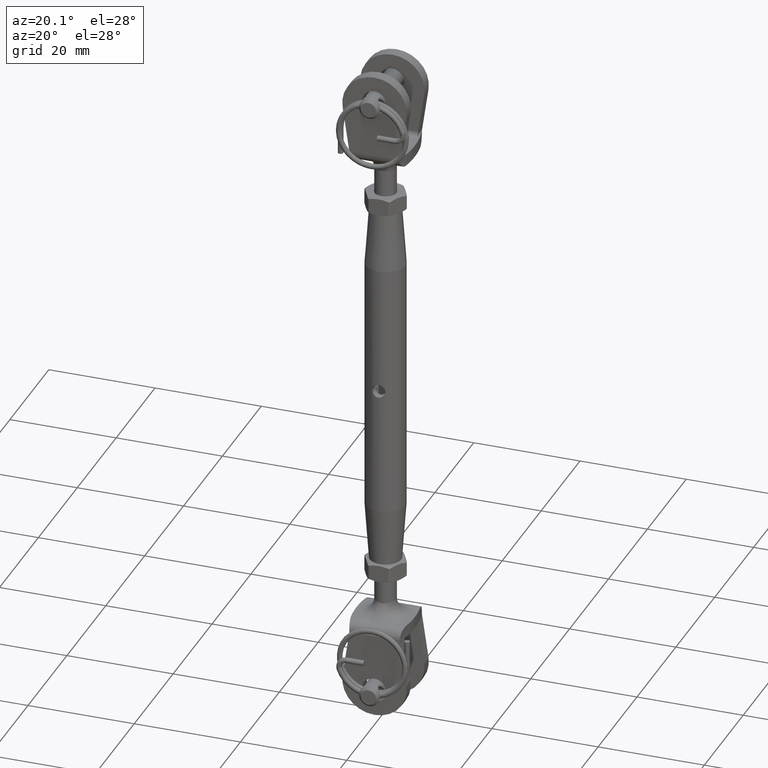
[diagram: clean part render]
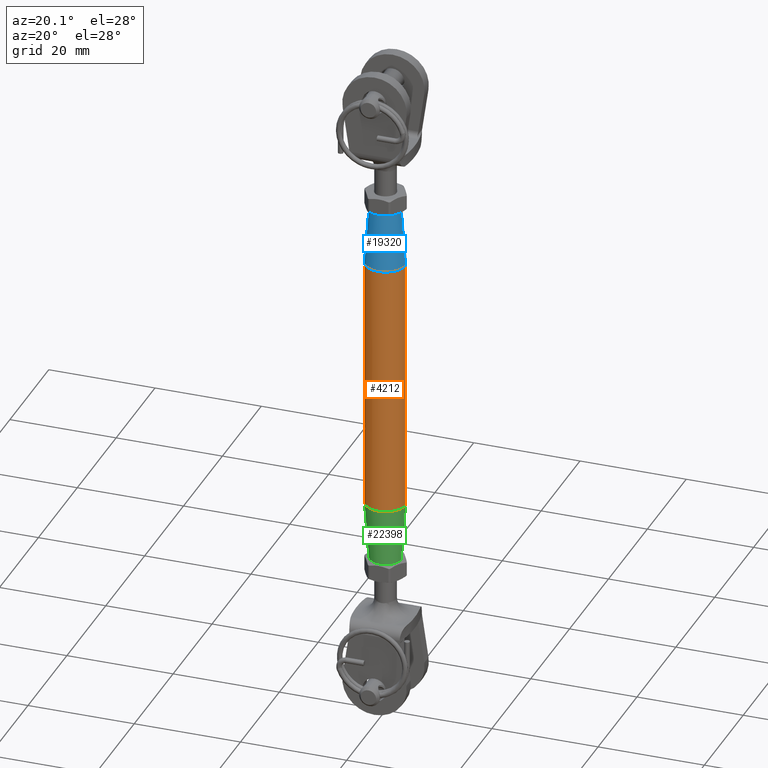
[diagram: same view with three faces highlighted in distinct colors, each labeled with its STEP entity id]
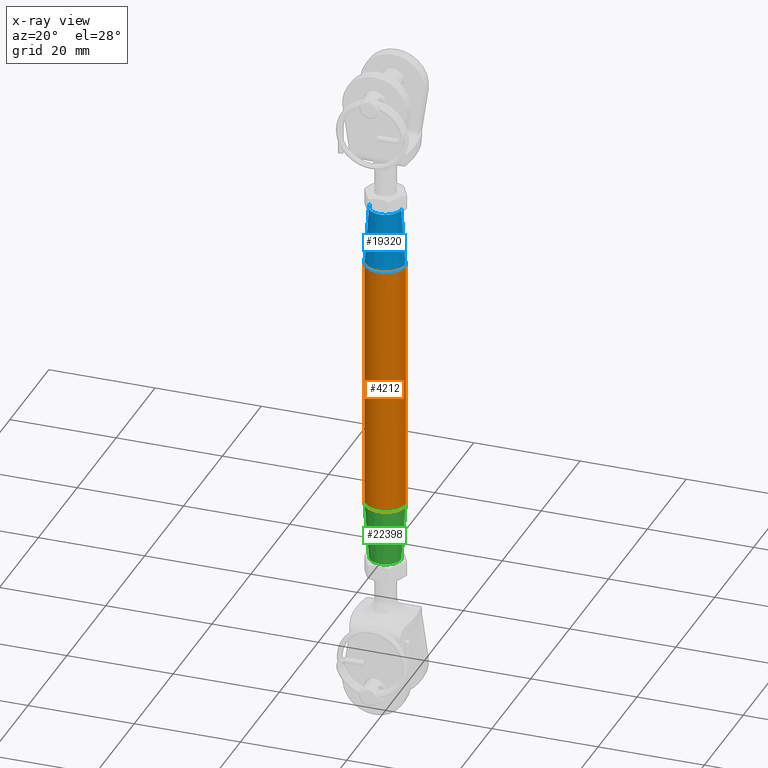
[diagram: x-ray of the same camera — body ghosted, the three highlighted faces saturated]
A machine part, auxiliary view with three faces highlighted in distinct colors.
The next image is the same camera in x-ray (body ghosted, the three faces saturated) — at least one of them is partly hidden behind the body in this view.
Their STEP definitions:

[orange] entity #4212 — the highlighted cylindrical surface (edge-blend (fillet) strip) has radius 3.75 mm, axis along (0, 0, 1).
#26 = CARTESIAN_POINT ( 'NONE',  ( 0.0000000000000000000, -3.749999999999993800, 1.250000000000000000 ) ) ;
#39 = CARTESIAN_POINT ( 'NONE',  ( 0.6320108780505503400, -3.699498500918843900, 1.090814025960213300 ) ) ;
#272 = CARTESIAN_POINT ( 'NONE',  ( -3.749999999999993800, 4.592425496802567100E-016, 24.00000000000000700 ) ) ;
#385 = EDGE_CURVE ( 'NONE', #8331, #26174, #14412, .T. ) ;
#594 = FACE_OUTER_BOUND ( 'NONE', #23929, .T. ) ;
#1698 = CARTESIAN_POINT ( 'NONE',  ( -0.7694914848820424400, -3.672094268853623300, 0.9983159871190907500 ) ) ;
#1845 = VERTEX_POINT ( 'NONE', #26148 ) ;
#2108 = CARTESIAN_POINT ( 'NONE',  ( 1.185723957054449300, -3.557761199879605000, -0.4041576032034501200 ) ) ;
#2141 = CARTESIAN_POINT ( 'NONE',  ( 1.209544131638288000, -3.549618786202352700, -0.3259293725565076100 ) ) ;
#2430 = CARTESIAN_POINT ( 'NONE',  ( -3.749999999999993800, 4.592425496802567100E-016, 35.00000000000000000 ) ) ;
#2431 = CARTESIAN_POINT ( 'NONE',  ( 0.3297197248178919700, -3.738584198776457900, 1.216798213456845100 ) ) ;
#3156 = AXIS2_PLACEMENT_3D ( 'NONE', #21118, #25583, #21026 ) ;
#3355 = VECTOR ( 'NONE', #24515, 1000.000000000000000 ) ;
#3857 = CARTESIAN_POINT ( 'NONE',  ( -1.090963977429626000, -3.588412831428236900, -0.6319488626941608400 ) ) ;
#3982 = CIRCLE ( 'NONE', #3156, 3.749999999999993800 ) ;
#4171 = EDGE_CURVE ( 'NONE', #26174, #1845, #10773, .T. ) ;
#4212 = ADVANCED_FACE ( 'NONE', ( #594, #9795 ), #20923, .T. ) ;
#4526 = CARTESIAN_POINT ( 'NONE',  ( 3.749999999999993800, 0.0000000000000000000, -24.00000000000000700 ) ) ;
#5016 = LINE ( 'NONE', #7583, #3355 ) ;
#5289 = VECTOR ( 'NONE', #17569, 1000.000000000000000 ) ;
#5290 = CARTESIAN_POINT ( 'NONE',  ( 1.530268035033271700E-016, -3.749999999999993800, -1.250000000000000000 ) ) ;
#5600 = VERTEX_POINT ( 'NONE', #21301 ) ;
#5668 = CARTESIAN_POINT ( 'NONE',  ( -0.6311023444221300900, -3.699640464665185900, -1.091283776973281700 ) ) ;
#5940 = CARTESIAN_POINT ( 'NONE',  ( -1.209500571403290500, -3.549633526929109300, -0.3260387892030225400 ) ) ;
#6037 = CARTESIAN_POINT ( 'NONE',  ( -0.1664231518548636700, -3.749999999999992500, 1.249999999999999600 ) ) ;
#6140 = AXIS2_PLACEMENT_3D ( 'NONE', #23120, #16745, #14568 ) ;
#6174 = EDGE_CURVE ( 'NONE', #15053, #1845, #5016, .T. ) ;
#6496 = CARTESIAN_POINT ( 'NONE',  ( 0.7698997003452272600, -3.672003145877369900, 0.9979692256851021600 ) ) ;
#6705 = EDGE_CURVE ( 'NONE', #21989, #5600, #11899, .T. ) ;
#7583 = CARTESIAN_POINT ( 'NONE',  ( 3.749999999999993800, 0.0000000000000000000, 35.00000000000000000 ) ) ;
#7619 = AXIS2_PLACEMENT_3D ( 'NONE', #25284, #20929, #27660 ) ;
#8143 = CARTESIAN_POINT ( 'NONE',  ( -1.250009802955045900, -3.535530440064764700, -0.08221989510962238200 ) ) ;
#8331 = VERTEX_POINT ( 'NONE', #18835 ) ;
#8880 = CARTESIAN_POINT ( 'NONE',  ( 0.0000000000000000000, -3.749999999999993800, 1.250000000000000000 ) ) ;
#8970 = CARTESIAN_POINT ( 'NONE',  ( 1.091466335872163200, -3.588247214533702800, 0.6305990485126679000 ) ) ;
#9323 = EDGE_LOOP ( 'NONE', ( #21456, #17398 ) ) ;
#9795 = FACE_BOUND ( 'NONE', #9323, .T. ) ;
#10773 = CIRCLE ( 'NONE', #7619, 3.749999999999993800 ) ;
#10862 = CARTESIAN_POINT ( 'NONE',  ( 1.250040618164601500, -3.535519545244908200, -0.08158253637666958200 ) ) ;
#11108 = CARTESIAN_POINT ( 'NONE',  ( 1.090794001129100200, -3.588466619310704900, -0.6323030360047410300 ) ) ;
#11269 = ORIENTED_EDGE ( 'NONE', *, *, #25728, .T. ) ;
#11899 = B_SPLINE_CURVE_WITH_KNOTS ( 'NONE', 3,
 ( #8880, #19470, #2431, #39, #6496, #21929, #8970, #21648, #12919, #10862, #15094, #2141, #2108, #11108, #21995, #12499, #27654, #27791, #26320, #23273, #18032, #5290 ),
 .UNSPECIFIED., .F., .F.,
 ( 4, 2, 2, 2, 2, 2, 2, 2, 2, 2, 4 ),
 ( 0.0000000000000000000, 0.0004920558132677722800, 0.0009841116265355443400, 0.001476167439803316400, 0.001968223253071088200, 0.002214251159704974100, 0.002460279066338860700, 0.002952334879606632800, 0.003198362786240518200, 0.003444390692874404400, 0.003936446506142174700 ),
 .UNSPECIFIED. ) ;
#12205 = CARTESIAN_POINT ( 'NONE',  ( -1.241678343262103000, -3.538505998242472000, -0.1656134540541264700 ) ) ;
#12481 = CARTESIAN_POINT ( 'NONE',  ( -1.185730390998942700, -3.557758522168660100, -0.4041149355553636500 ) ) ;
#12499 = CARTESIAN_POINT ( 'NONE',  ( 0.8260014785984332000, -3.658377809847904500, -0.9417221101786827900 ) ) ;
#12919 = CARTESIAN_POINT ( 'NONE',  ( 1.249918302402952100, -3.535562790391178400, 0.1650250481899059900 ) ) ;
#13023 = B_SPLINE_CURVE_WITH_KNOTS ( 'NONE', 3,
 ( #23017, #14547, #18651, #5668, #18918, #25167, #3857, #12481, #5940, #12205, #8143, #23282, #25453, #27640, #14641, #1698, #25544, #17291, #6037, #21379 ),
 .UNSPECIFIED., .F., .F.,
 ( 4, 2, 2, 2, 2, 2, 2, 2, 2, 4 ),
 ( 0.003936446506142174700, 0.004428377038671974300, 0.004920307571201773900, 0.005412238103731573400, 0.005658203369996473200, 0.005904168636261373000, 0.006396099168791172600, 0.006888029701320972200, 0.007379960233850772600, 0.007871890766380573000 ),
 .UNSPECIFIED. ) ;
#14412 = LINE ( 'NONE', #2430, #5289 ) ;
#14547 = CARTESIAN_POINT ( 'NONE',  ( -0.1639419682043154200, -3.749999999999994700, -1.249999999999999800 ) ) ;
#14568 = DIRECTION ( 'NONE',  ( 1.000000000000000000, 0.0000000000000000000, 0.0000000000000000000 ) ) ;
#14641 = CARTESIAN_POINT ( 'NONE',  ( -0.9985882534272267900, -3.616519731008081400, 0.7691381251509360500 ) ) ;
#15053 = VERTEX_POINT ( 'NONE', #4526 ) ;
#15094 = CARTESIAN_POINT ( 'NONE',  ( 1.241761983712016800, -3.538476749895198100, -0.1650882736092887900 ) ) ;
#16745 = DIRECTION ( 'NONE',  ( -0.0000000000000000000, -0.0000000000000000000, 1.000000000000000000 ) ) ;
#17291 = CARTESIAN_POINT ( 'NONE',  ( -0.3296877630051796600, -3.738586061306944600, 1.216803087433497000 ) ) ;
#17398 = ORIENTED_EDGE ( 'NONE', *, *, #20939, .T. ) ;
#17569 = DIRECTION ( 'NONE',  ( -0.0000000000000000000, -0.0000000000000000000, 1.000000000000000000 ) ) ;
#18032 = CARTESIAN_POINT ( 'NONE',  ( 0.1639837195683863100, -3.749999999999994700, -1.250000000000000000 ) ) ;
#18589 = ORIENTED_EDGE ( 'NONE', *, *, #6174, .T. ) ;
#18651 = CARTESIAN_POINT ( 'NONE',  ( -0.3294379438808623900, -3.738596043711421800, -1.216824182925261100 ) ) ;
#18835 = CARTESIAN_POINT ( 'NONE',  ( -3.749999999999993800, 4.592425496802567100E-016, -24.00000000000000700 ) ) ;
#18918 = CARTESIAN_POINT ( 'NONE',  ( -0.7686322532443392600, -3.672302808577158700, -0.9991763519603743500 ) ) ;
#19470 = CARTESIAN_POINT ( 'NONE',  ( 0.1664655351059555200, -3.749999999999995100, 1.250000000000000400 ) ) ;
#20923 = CYLINDRICAL_SURFACE ( 'NONE', #6140, 3.749999999999993800 ) ;
#20929 = DIRECTION ( 'NONE',  ( -0.0000000000000000000, -0.0000000000000000000, 1.000000000000000000 ) ) ;
#20939 = EDGE_CURVE ( 'NONE', #5600, #21989, #13023, .T. ) ;
#21026 = DIRECTION ( 'NONE',  ( 1.000000000000000000, 0.0000000000000000000, 0.0000000000000000000 ) ) ;
#21118 = CARTESIAN_POINT ( 'NONE',  ( 0.0000000000000000000, 0.0000000000000000000, -24.00000000000000700 ) ) ;
#21301 = CARTESIAN_POINT ( 'NONE',  ( 1.530268035033271700E-016, -3.749999999999993800, -1.250000000000000000 ) ) ;
#21379 = CARTESIAN_POINT ( 'NONE',  ( 0.0000000000000000000, -3.749999999999993800, 1.250000000000000000 ) ) ;
#21456 = ORIENTED_EDGE ( 'NONE', *, *, #6705, .T. ) ;
#21648 = CARTESIAN_POINT ( 'NONE',  ( 1.216495055809340600, -3.547810115288374500, 0.3302933567583769000 ) ) ;
#21929 = CARTESIAN_POINT ( 'NONE',  ( 0.9986561048412723200, -3.616495352712102200, 0.7690085228847929300 ) ) ;
#21989 = VERTEX_POINT ( 'NONE', #26 ) ;
#21995 = CARTESIAN_POINT ( 'NONE',  ( 0.9986507671121067600, -3.616520871539895300, -0.7692025397317333600 ) ) ;
#22026 = ORIENTED_EDGE ( 'NONE', *, *, #4171, .F. ) ;
#23017 = CARTESIAN_POINT ( 'NONE',  ( 1.530268035033271700E-016, -3.749999999999993800, -1.250000000000000000 ) ) ;
#23120 = CARTESIAN_POINT ( 'NONE',  ( 0.0000000000000000000, 0.0000000000000000000, 35.00000000000000000 ) ) ;
#23273 = CARTESIAN_POINT ( 'NONE',  ( 0.3294706541054130400, -3.738581249397976000, -1.216771266839125500 ) ) ;
#23282 = CARTESIAN_POINT ( 'NONE',  ( -1.249980367484170500, -3.535540847075214500, 0.1648864926133714600 ) ) ;
#23824 = ORIENTED_EDGE ( 'NONE', *, *, #385, .F. ) ;
#23929 = EDGE_LOOP ( 'NONE', ( #23824, #11269, #18589, #22026 ) ) ;
#24515 = DIRECTION ( 'NONE',  ( -0.0000000000000000000, -0.0000000000000000000, 1.000000000000000000 ) ) ;
#25167 = CARTESIAN_POINT ( 'NONE',  ( -0.9994538311842092700, -3.616309651833256000, -0.7682714119212800100 ) ) ;
#25284 = CARTESIAN_POINT ( 'NONE',  ( 0.0000000000000000000, 0.0000000000000000000, 24.00000000000000700 ) ) ;
#25453 = CARTESIAN_POINT ( 'NONE',  ( -1.216649721504722100, -3.547759667013950000, 0.3299024798006954800 ) ) ;
#25544 = CARTESIAN_POINT ( 'NONE',  ( -0.6319329662578135900, -3.699510844021212100, 1.090854940319587500 ) ) ;
#25583 = DIRECTION ( 'NONE',  ( -0.0000000000000000000, -0.0000000000000000000, 1.000000000000000000 ) ) ;
#25728 = EDGE_CURVE ( 'NONE', #8331, #15053, #3982, .T. ) ;
#26148 = CARTESIAN_POINT ( 'NONE',  ( 3.749999999999993800, 0.0000000000000000000, 24.00000000000000700 ) ) ;
#26174 = VERTEX_POINT ( 'NONE', #272 ) ;
#26320 = CARTESIAN_POINT ( 'NONE',  ( 0.5552849340516132800, -3.709436454447220000, -1.122855488896884000 ) ) ;
#27640 = CARTESIAN_POINT ( 'NONE',  ( -1.091355583177258100, -3.588283460207160500, 0.6308844443192375100 ) ) ;
#27654 = CARTESIAN_POINT ( 'NONE',  ( 0.7635022463610676700, -3.672095763094377600, -0.9930626638971045100 ) ) ;
#27660 = DIRECTION ( 'NONE',  ( 1.000000000000000000, 0.0000000000000000000, 0.0000000000000000000 ) ) ;
#27791 = CARTESIAN_POINT ( 'NONE',  ( 0.6284423705968739100, -3.697605057381420300, -1.083590938252712000 ) ) ;

[blue] entity #19320 — the highlighted conical surface has half-angle 4.16 deg.
#272 = CARTESIAN_POINT ( 'NONE',  ( -3.749999999999993800, 4.592425496802567100E-016, 24.00000000000000700 ) ) ;
#1171 = CARTESIAN_POINT ( 'NONE',  ( -3.749999999999993800, 0.0000000000000000000, 24.00000000000000700 ) ) ;
#1845 = VERTEX_POINT ( 'NONE', #26148 ) ;
#2718 = VERTEX_POINT ( 'NONE', #7794 ) ;
#3280 = AXIS2_PLACEMENT_3D ( 'NONE', #27207, #22467, #16113 ) ;
#4171 = EDGE_CURVE ( 'NONE', #26174, #1845, #10773, .T. ) ;
#4600 = ORIENTED_EDGE ( 'NONE', *, *, #17363, .F. ) ;
#4990 = CARTESIAN_POINT ( 'NONE',  ( 3.749999999999993800, 4.592425496802567100E-016, 24.00000000000000700 ) ) ;
#6261 = ORIENTED_EDGE ( 'NONE', *, *, #18718, .F. ) ;
#7619 = AXIS2_PLACEMENT_3D ( 'NONE', #25284, #20929, #27660 ) ;
#7794 = CARTESIAN_POINT ( 'NONE',  ( 2.950000000000000200, 4.102566777143629300E-016, 35.00000000000000000 ) ) ;
#7808 = AXIS2_PLACEMENT_3D ( 'NONE', #8125, #25436, #23170 ) ;
#7824 = LINE ( 'NONE', #1171, #20001 ) ;
#8125 = CARTESIAN_POINT ( 'NONE',  ( 0.0000000000000000000, 0.0000000000000000000, 35.00000000000000000 ) ) ;
#10280 = CIRCLE ( 'NONE', #7808, 2.950000000000000200 ) ;
#10773 = CIRCLE ( 'NONE', #7619, 3.749999999999993800 ) ;
#10844 = EDGE_CURVE ( 'NONE', #23043, #26174, #7824, .T. ) ;
#11619 = DIRECTION ( 'NONE',  ( 0.07253569577882081100, 8.883060765945908400E-018, -0.9973658169587938900 ) ) ;
#11957 = VECTOR ( 'NONE', #11619, 1000.000000000000000 ) ;
#13056 = ORIENTED_EDGE ( 'NONE', *, *, #4171, .T. ) ;
#13611 = LINE ( 'NONE', #4990, #11957 ) ;
#16113 = DIRECTION ( 'NONE',  ( -1.000000000000000000, 0.0000000000000000000, 0.0000000000000000000 ) ) ;
#16121 = DIRECTION ( 'NONE',  ( -0.07253569577882081100, 0.0000000000000000000, -0.9973658169587938900 ) ) ;
#16332 = CONICAL_SURFACE ( 'NONE', #3280, 3.749999999999993800, 0.07259945373049406200 ) ;
#17363 = EDGE_CURVE ( 'NONE', #23043, #2718, #10280, .T. ) ;
#18718 = EDGE_CURVE ( 'NONE', #2718, #1845, #13611, .T. ) ;
#19320 = ADVANCED_FACE ( 'NONE', ( #22804 ), #16332, .T. ) ;
#20001 = VECTOR ( 'NONE', #16121, 1000.000000000000000 ) ;
#20929 = DIRECTION ( 'NONE',  ( -0.0000000000000000000, -0.0000000000000000000, 1.000000000000000000 ) ) ;
#22467 = DIRECTION ( 'NONE',  ( 0.0000000000000000000, 0.0000000000000000000, -1.000000000000000000 ) ) ;
#22804 = FACE_OUTER_BOUND ( 'NONE', #25278, .T. ) ;
#23043 = VERTEX_POINT ( 'NONE', #25347 ) ;
#23170 = DIRECTION ( 'NONE',  ( 1.000000000000000000, 0.0000000000000000000, 0.0000000000000000000 ) ) ;
#25278 = EDGE_LOOP ( 'NONE', ( #6261, #4600, #27302, #13056 ) ) ;
#25284 = CARTESIAN_POINT ( 'NONE',  ( 0.0000000000000000000, 0.0000000000000000000, 24.00000000000000700 ) ) ;
#25347 = CARTESIAN_POINT ( 'NONE',  ( -2.950000000000000200, 0.0000000000000000000, 35.00000000000000000 ) ) ;
#25436 = DIRECTION ( 'NONE',  ( -0.0000000000000000000, -0.0000000000000000000, 1.000000000000000000 ) ) ;
#26148 = CARTESIAN_POINT ( 'NONE',  ( 3.749999999999993800, 0.0000000000000000000, 24.00000000000000700 ) ) ;
#26174 = VERTEX_POINT ( 'NONE', #272 ) ;
#27207 = CARTESIAN_POINT ( 'NONE',  ( 0.0000000000000000000, 0.0000000000000000000, 24.00000000000000700 ) ) ;
#27302 = ORIENTED_EDGE ( 'NONE', *, *, #10844, .T. ) ;
#27660 = DIRECTION ( 'NONE',  ( 1.000000000000000000, 0.0000000000000000000, 0.0000000000000000000 ) ) ;

[green] entity #22398 — the highlighted conical surface has half-angle 4.16 deg.
#1233 = ORIENTED_EDGE ( 'NONE', *, *, #8681, .F. ) ;
#1617 = LINE ( 'NONE', #2450, #11098 ) ;
#2450 = CARTESIAN_POINT ( 'NONE',  ( -2.950000000000000200, 3.612708057484692100E-016, -35.00000000000000000 ) ) ;
#3156 = AXIS2_PLACEMENT_3D ( 'NONE', #21118, #25583, #21026 ) ;
#3594 = EDGE_LOOP ( 'NONE', ( #1233, #15853, #4234, #22158 ) ) ;
#3982 = CIRCLE ( 'NONE', #3156, 3.749999999999993800 ) ;
#4234 = ORIENTED_EDGE ( 'NONE', *, *, #5235, .T. ) ;
#4526 = CARTESIAN_POINT ( 'NONE',  ( 3.749999999999993800, 0.0000000000000000000, -24.00000000000000700 ) ) ;
#5235 = EDGE_CURVE ( 'NONE', #27471, #15053, #7402, .T. ) ;
#5334 = DIRECTION ( 'NONE',  ( 1.000000000000000000, 0.0000000000000000000, 0.0000000000000000000 ) ) ;
#6924 = CARTESIAN_POINT ( 'NONE',  ( 2.950000000000000200, 0.0000000000000000000, -35.00000000000000000 ) ) ;
#7402 = LINE ( 'NONE', #25605, #27422 ) ;
#8331 = VERTEX_POINT ( 'NONE', #18835 ) ;
#8681 = EDGE_CURVE ( 'NONE', #25256, #8331, #1617, .T. ) ;
#8755 = AXIS2_PLACEMENT_3D ( 'NONE', #20290, #18115, #5334 ) ;
#10968 = DIRECTION ( 'NONE',  ( -0.07253569577882081100, 8.883060765945908400E-018, 0.9973658169587938900 ) ) ;
#11098 = VECTOR ( 'NONE', #10968, 1000.000000000000000 ) ;
#15053 = VERTEX_POINT ( 'NONE', #4526 ) ;
#15771 = AXIS2_PLACEMENT_3D ( 'NONE', #27211, #18586, #25112 ) ;
#15853 = ORIENTED_EDGE ( 'NONE', *, *, #21628, .T. ) ;
#15930 = CIRCLE ( 'NONE', #15771, 2.950000000000000200 ) ;
#18115 = DIRECTION ( 'NONE',  ( -0.0000000000000000000, -0.0000000000000000000, 1.000000000000000000 ) ) ;
#18586 = DIRECTION ( 'NONE',  ( -0.0000000000000000000, -0.0000000000000000000, 1.000000000000000000 ) ) ;
#18835 = CARTESIAN_POINT ( 'NONE',  ( -3.749999999999993800, 4.592425496802567100E-016, -24.00000000000000700 ) ) ;
#18981 = CONICAL_SURFACE ( 'NONE', #8755, 2.950000000000000200, 0.07259945373049406200 ) ;
#19356 = DIRECTION ( 'NONE',  ( 0.07253569577882081100, 0.0000000000000000000, 0.9973658169587938900 ) ) ;
#20290 = CARTESIAN_POINT ( 'NONE',  ( 0.0000000000000000000, 0.0000000000000000000, -35.00000000000000000 ) ) ;
#21026 = DIRECTION ( 'NONE',  ( 1.000000000000000000, 0.0000000000000000000, 0.0000000000000000000 ) ) ;
#21118 = CARTESIAN_POINT ( 'NONE',  ( 0.0000000000000000000, 0.0000000000000000000, -24.00000000000000700 ) ) ;
#21476 = CARTESIAN_POINT ( 'NONE',  ( -2.950000000000000200, 4.102566777143629300E-016, -35.00000000000000000 ) ) ;
#21628 = EDGE_CURVE ( 'NONE', #25256, #27471, #15930, .T. ) ;
#22158 = ORIENTED_EDGE ( 'NONE', *, *, #25728, .F. ) ;
#22398 = ADVANCED_FACE ( 'NONE', ( #23398 ), #18981, .T. ) ;
#23398 = FACE_OUTER_BOUND ( 'NONE', #3594, .T. ) ;
#25112 = DIRECTION ( 'NONE',  ( 1.000000000000000000, 0.0000000000000000000, 0.0000000000000000000 ) ) ;
#25256 = VERTEX_POINT ( 'NONE', #21476 ) ;
#25583 = DIRECTION ( 'NONE',  ( -0.0000000000000000000, -0.0000000000000000000, 1.000000000000000000 ) ) ;
#25605 = CARTESIAN_POINT ( 'NONE',  ( 2.950000000000000200, 0.0000000000000000000, -35.00000000000000000 ) ) ;
#25728 = EDGE_CURVE ( 'NONE', #8331, #15053, #3982, .T. ) ;
#27211 = CARTESIAN_POINT ( 'NONE',  ( 0.0000000000000000000, 0.0000000000000000000, -35.00000000000000000 ) ) ;
#27422 = VECTOR ( 'NONE', #19356, 1000.000000000000000 ) ;
#27471 = VERTEX_POINT ( 'NONE', #6924 ) ;